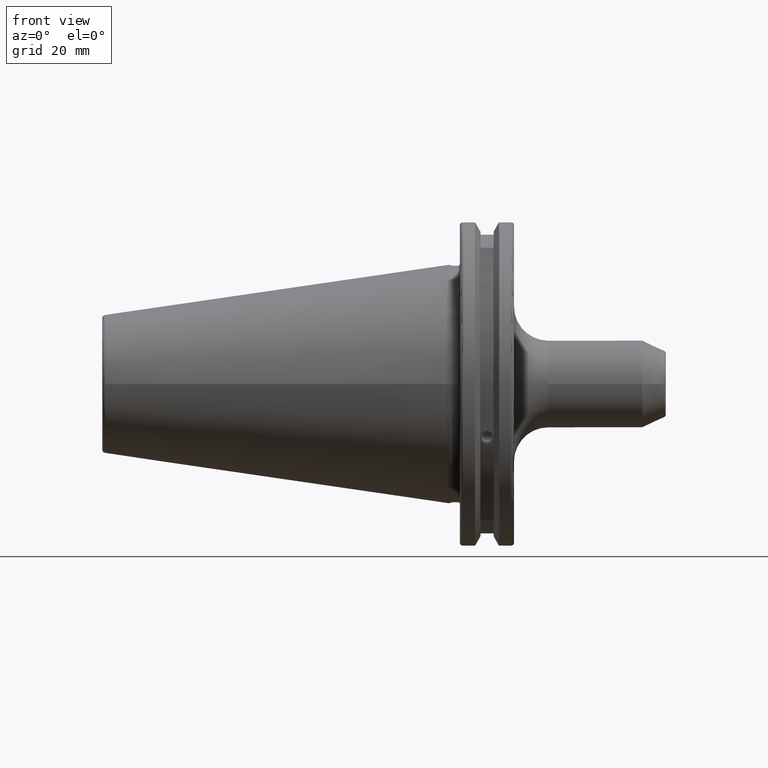
[diagram: clean part render]
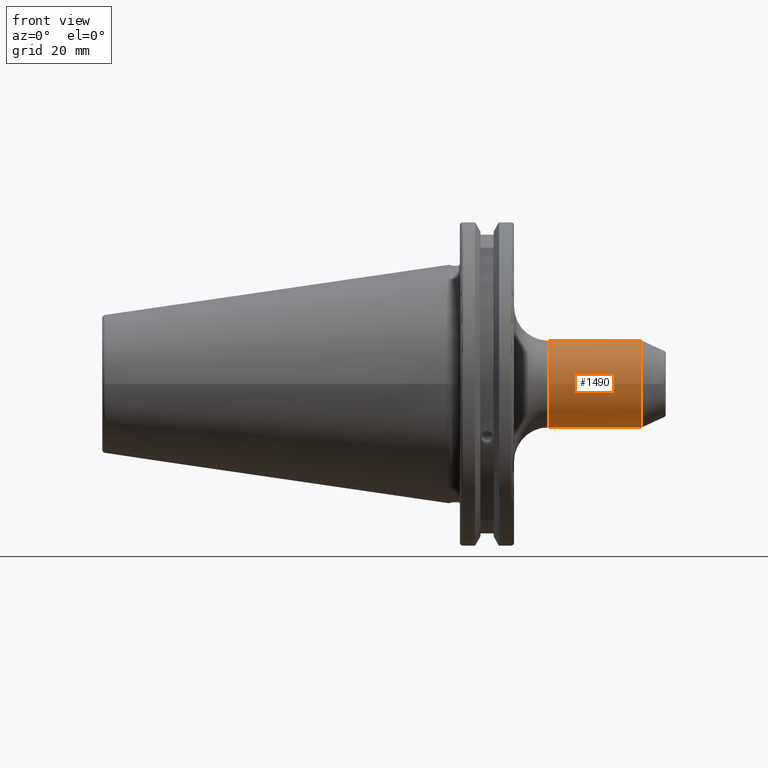
[diagram: same view with one face highlighted and labeled with its STEP entity id]
A machine part, front view. The second image highlights one B-rep face of the part: STEP entity #1490.
In plain terms, the highlighted cylindrical surface (bore or boss wall) has radius 12.7 mm, axis along (1, 0, 0).
Its self-contained STEP definition (entity closure, byte-faithful):
#80=FACE_BOUND('',#284,.T.);
#105=CIRCLE('',#1605,12.7);
#106=CIRCLE('',#1606,12.7);
#109=CIRCLE('',#1611,12.7);
#110=CIRCLE('',#1612,12.7);
#195=FACE_OUTER_BOUND('',#283,.T.);
#283=EDGE_LOOP('',(#1027,#1028,#1029,#1030,#1031,#1032));
#284=EDGE_LOOP('',(#1033,#1034));
#386=LINE('',#2380,#479);
#479=VECTOR('',#1800,12.7);
#568=B_SPLINE_CURVE_WITH_KNOTS('',3,(#2191,#2192,#2193,#2194,#2195,#2196,
#2197,#2198,#2199,#2200,#2201,#2202,#2203,#2204,#2205,#2206,#2207,#2208,
#2209,#2210,#2211,#2212,#2213,#2214,#2215,#2216),.UNSPECIFIED.,.F.,.F.,
(4,2,2,2,2,2,2,2,2,2,2,2,4),(0.,0.15920264525632,0.31840529051264,0.477537165748058,
0.636669040983476,0.795800916218894,0.954932791454312,1.11413543671063,
1.27333808196695,1.43254072722327,1.59174337247959,1.75087524771501,1.91000712295043),
 .UNSPECIFIED.);
#569=B_SPLINE_CURVE_WITH_KNOTS('',3,(#2217,#2218,#2219,#2220,#2221,#2222,
#2223,#2224,#2225,#2226),.UNSPECIFIED.,.F.,.F.,(4,2,2,2,4),(1.91000712295043,
2.06913899818585,2.22827087342126,2.38747351867758,2.5466761639339),
 .UNSPECIFIED.);
#610=VERTEX_POINT('',#2189);
#611=VERTEX_POINT('',#2190);
#624=VERTEX_POINT('',#2367);
#625=VERTEX_POINT('',#2369);
#628=VERTEX_POINT('',#2379);
#629=VERTEX_POINT('',#2381);
#765=EDGE_CURVE('',#610,#611,#568,.T.);
#766=EDGE_CURVE('',#611,#610,#569,.T.);
#783=EDGE_CURVE('',#624,#625,#105,.T.);
#784=EDGE_CURVE('',#625,#624,#106,.T.);
#788=EDGE_CURVE('',#625,#628,#386,.T.);
#789=EDGE_CURVE('',#629,#628,#109,.T.);
#790=EDGE_CURVE('',#628,#629,#110,.T.);
#1027=ORIENTED_EDGE('',*,*,#784,.F.);
#1028=ORIENTED_EDGE('',*,*,#788,.T.);
#1029=ORIENTED_EDGE('',*,*,#789,.F.);
#1030=ORIENTED_EDGE('',*,*,#790,.F.);
#1031=ORIENTED_EDGE('',*,*,#788,.F.);
#1032=ORIENTED_EDGE('',*,*,#783,.F.);
#1033=ORIENTED_EDGE('',*,*,#765,.T.);
#1034=ORIENTED_EDGE('',*,*,#766,.T.);
#1460=CYLINDRICAL_SURFACE('',#1610,12.7);
#1490=ADVANCED_FACE('',(#195,#80),#1460,.T.);
#1605=AXIS2_PLACEMENT_3D('',#2370,#1787,#1788);
#1606=AXIS2_PLACEMENT_3D('',#2371,#1789,#1790);
#1610=AXIS2_PLACEMENT_3D('',#2378,#1798,#1799);
#1611=AXIS2_PLACEMENT_3D('',#2382,#1801,#1802);
#1612=AXIS2_PLACEMENT_3D('',#2383,#1803,#1804);
#1787=DIRECTION('center_axis',(1.,0.,0.));
#1788=DIRECTION('ref_axis',(0.,-1.,1.83697019872103E-16));
#1789=DIRECTION('center_axis',(1.,0.,0.));
#1790=DIRECTION('ref_axis',(0.,-1.,1.83697019872103E-16));
#1798=DIRECTION('center_axis',(1.,0.,0.));
#1799=DIRECTION('ref_axis',(0.,1.,0.));
#1800=DIRECTION('',(-1.,0.,0.));
#1801=DIRECTION('center_axis',(-1.,0.,0.));
#1802=DIRECTION('ref_axis',(0.,-1.,-1.22464679914735E-16));
#1803=DIRECTION('center_axis',(-1.,0.,0.));
#1804=DIRECTION('ref_axis',(0.,-1.,-1.22464679914735E-16));
#2189=CARTESIAN_POINT('',(47.5,11.9885578365373,-4.191));
#2190=CARTESIAN_POINT('',(43.309,12.7,-5.13249473522656E-16));
#2191=CARTESIAN_POINT('Ctrl Pts',(47.5,11.9885578365373,-4.191));
#2192=CARTESIAN_POINT('Ctrl Pts',(48.0306754841877,11.9885578365373,-4.191));
#2193=CARTESIAN_POINT('Ctrl Pts',(48.5937265699844,12.0274937220072,-4.08412599157319));
#2194=CARTESIAN_POINT('Ctrl Pts',(49.6249594858719,12.1646954291668,-3.6552527996376));
#2195=CARTESIAN_POINT('Ctrl Pts',(50.0935285191928,12.260624915635,-3.33344052071282));
#2196=CARTESIAN_POINT('Ctrl Pts',(50.833276064941,12.4381420283446,-2.59369297496467));
#2197=CARTESIAN_POINT('Ctrl Pts',(51.1552150303342,12.531737851928,-2.12505829952587));
#2198=CARTESIAN_POINT('Ctrl Pts',(51.5841825978456,12.6635067717519,-1.09358246218166));
#2199=CARTESIAN_POINT('Ctrl Pts',(51.691,12.7,-0.53043958411806));
#2200=CARTESIAN_POINT('Ctrl Pts',(51.691,12.7,0.53043958411806));
#2201=CARTESIAN_POINT('Ctrl Pts',(51.5841825978456,12.6635067717519,1.09358246218166));
#2202=CARTESIAN_POINT('Ctrl Pts',(51.1552150303342,12.531737851928,2.12505829952587));
#2203=CARTESIAN_POINT('Ctrl Pts',(50.833276064941,12.4381420283446,2.59369297496467));
#2204=CARTESIAN_POINT('Ctrl Pts',(50.0935285191928,12.260624915635,3.33344052071282));
#2205=CARTESIAN_POINT('Ctrl Pts',(49.6249594858719,12.1646954291668,3.6552527996376));
#2206=CARTESIAN_POINT('Ctrl Pts',(48.5937265699844,12.0274937220073,4.08412599157319));
#2207=CARTESIAN_POINT('Ctrl Pts',(48.0306754841877,11.9885578365373,4.191));
#2208=CARTESIAN_POINT('Ctrl Pts',(46.9693245158123,11.9885578365373,4.191));
#2209=CARTESIAN_POINT('Ctrl Pts',(46.4062734300156,12.0274937220072,4.08412599157319));
#2210=CARTESIAN_POINT('Ctrl Pts',(45.3750405141281,12.1646954291668,3.6552527996376));
#2211=CARTESIAN_POINT('Ctrl Pts',(44.9064714808072,12.260624915635,3.33344052071282));
#2212=CARTESIAN_POINT('Ctrl Pts',(44.166723935059,12.4381420283446,2.59369297496467));
#2213=CARTESIAN_POINT('Ctrl Pts',(43.8447849696658,12.531737851928,2.12505829952587));
#2214=CARTESIAN_POINT('Ctrl Pts',(43.4158174021544,12.6635067717519,1.09358246218166));
#2215=CARTESIAN_POINT('Ctrl Pts',(43.309,12.7,0.53043958411806));
#2216=CARTESIAN_POINT('Ctrl Pts',(43.309,12.7,2.77555756156289E-16));
#2217=CARTESIAN_POINT('Ctrl Pts',(43.309,12.7,1.2490009027033E-15));
#2218=CARTESIAN_POINT('Ctrl Pts',(43.309,12.7,-0.530439584118059));
#2219=CARTESIAN_POINT('Ctrl Pts',(43.4158174021544,12.6635067717519,-1.09358246218166));
#2220=CARTESIAN_POINT('Ctrl Pts',(43.8447849696658,12.531737851928,-2.12505829952587));
#2221=CARTESIAN_POINT('Ctrl Pts',(44.166723935059,12.4381420283446,-2.59369297496467));
#2222=CARTESIAN_POINT('Ctrl Pts',(44.9064714808072,12.260624915635,-3.33344052071282));
#2223=CARTESIAN_POINT('Ctrl Pts',(45.3750405141281,12.1646954291668,-3.6552527996376));
#2224=CARTESIAN_POINT('Ctrl Pts',(46.4062734300156,12.0274937220073,-4.08412599157319));
#2225=CARTESIAN_POINT('Ctrl Pts',(46.9693245158123,11.9885578365373,-4.191));
#2226=CARTESIAN_POINT('Ctrl Pts',(47.5,11.9885578365373,-4.191));
#2367=CARTESIAN_POINT('',(56.4158831917265,-1.55530143491714E-15,12.7));
#2369=CARTESIAN_POINT('',(56.4158831917265,-12.7,-1.55530143491714E-15));
#2370=CARTESIAN_POINT('Origin',(56.4158831917265,0.,0.));
#2371=CARTESIAN_POINT('Origin',(56.4158831917265,0.,0.));
#2378=CARTESIAN_POINT('Origin',(37.8437889271847,0.,0.));
#2379=CARTESIAN_POINT('',(29.05,-12.7,-1.55530143491714E-15));
#2380=CARTESIAN_POINT('',(37.8437889271847,-12.7,-1.55530143491714E-15));
#2381=CARTESIAN_POINT('',(29.05,-1.55530143491714E-15,-12.7));
#2382=CARTESIAN_POINT('Origin',(29.05,0.,0.));
#2383=CARTESIAN_POINT('Origin',(29.05,0.,0.));